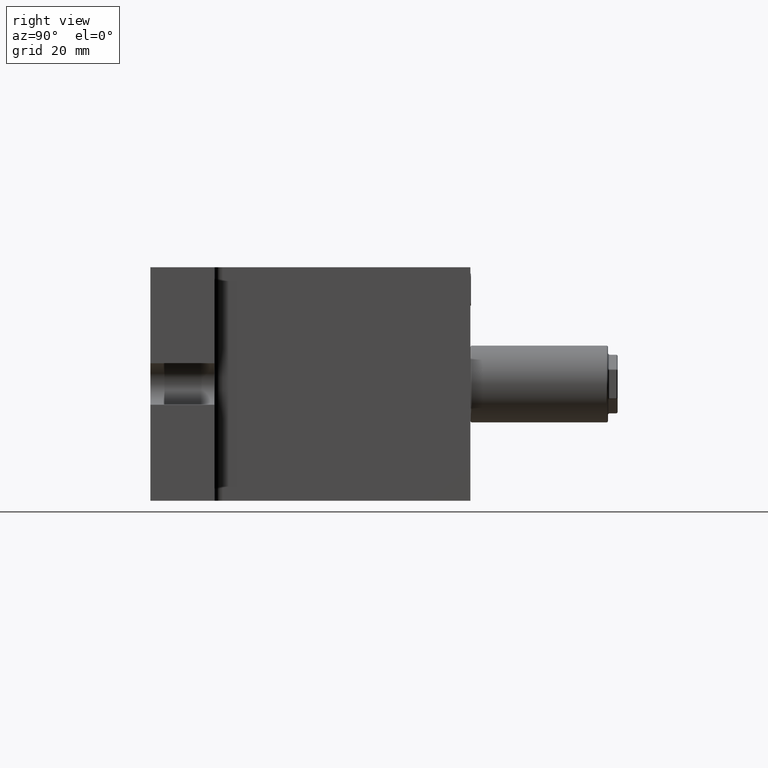
[diagram: clean part render]
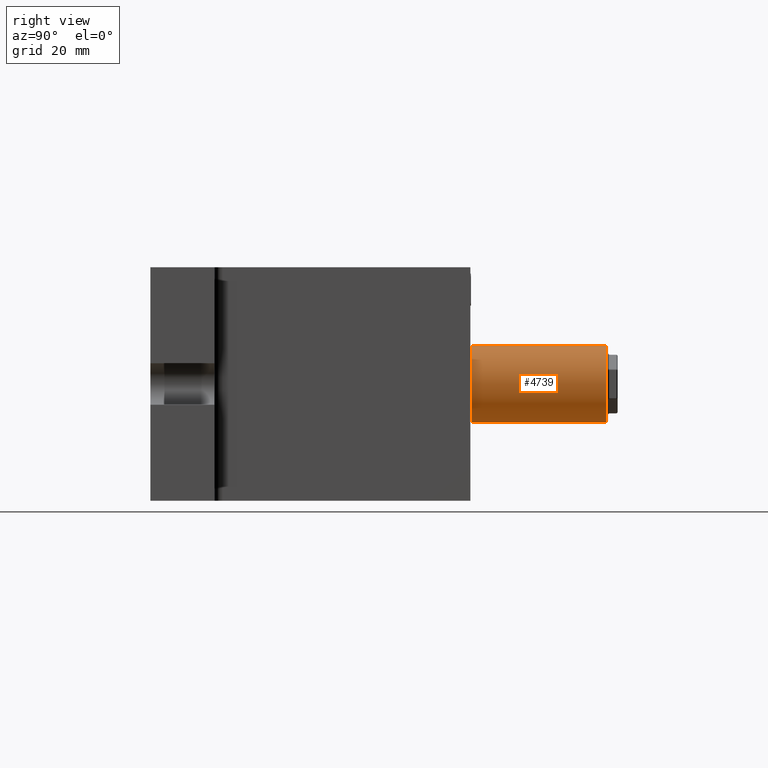
[diagram: same view with one face highlighted and labeled with its STEP entity id]
A machine part, right view. The second image highlights one B-rep face of the part: STEP entity #4739.
In plain terms, the highlighted cylindrical surface (partial cylindrical patch) has radius 12 mm, axis along (0, -1, -0).
Its self-contained STEP definition (entity closure, byte-faithful):
#79 = VECTOR ( 'NONE', #22641, 1000.000000000000000 ) ;
#368 = CARTESIAN_POINT ( 'NONE',  ( 34.00000000000000000, 93.00000000000000000, 12.00000000000000000 ) ) ;
#842 = EDGE_LOOP ( 'NONE', ( #18647, #15432, #8755, #21751, #4270, #22243, #6973, #6366, #6394, #12945, #4542, #15997, #4678, #18456, #5658, #15022, #20592, #19026, #2582, #13408 ) ) ;
#864 = DIRECTION ( 'NONE',  ( -0.0000000000000000000, 1.000000000000000000, 2.884981595602711200E-031 ) ) ;
#897 = CARTESIAN_POINT ( 'NONE',  ( 34.00000000000000000, 57.99999999999999300, 12.00000000000000000 ) ) ;
#912 = EDGE_CURVE ( 'NONE', #17815, #2125, #7672, .T. ) ;
#951 = CARTESIAN_POINT ( 'NONE',  ( 34.00000000000000700, 93.00000000000000000, -12.00000000000000000 ) ) ;
#1141 = EDGE_CURVE ( 'NONE', #7667, #10638, #6483, .T. ) ;
#1320 = VECTOR ( 'NONE', #15101, 1000.000000000000000 ) ;
#1331 = VERTEX_POINT ( 'NONE', #897 ) ;
#1772 = AXIS2_PLACEMENT_3D ( 'NONE', #7836, #7759, #5838 ) ;
#2046 = VERTEX_POINT ( 'NONE', #4234 ) ;
#2125 = VERTEX_POINT ( 'NONE', #6237 ) ;
#2294 = VECTOR ( 'NONE', #9269, 1000.000000000000000 ) ;
#2514 = CARTESIAN_POINT ( 'NONE',  ( 33.99999999999999300, 68.00000000000000000, -12.00000000000000000 ) ) ;
#2555 = CYLINDRICAL_SURFACE ( 'NONE', #13219, 12.00000000000000000 ) ;
#2582 = ORIENTED_EDGE ( 'NONE', *, *, #15588, .F. ) ;
#2590 = VECTOR ( 'NONE', #3011, 1000.000000000000000 ) ;
#3011 = DIRECTION ( 'NONE',  ( 0.0000000000000000000, -1.000000000000000000, -2.884981595602711200E-031 ) ) ;
#3042 = VECTOR ( 'NONE', #21755, 1000.000000000000000 ) ;
#3316 = CIRCLE ( 'NONE', #1772, 12.00000000000000000 ) ;
#3430 = CARTESIAN_POINT ( 'NONE',  ( 34.00000000000000000, 93.00000000000000000, -12.00000000000000000 ) ) ;
#3751 = DIRECTION ( 'NONE',  ( 0.0000000000000000000, -1.000000000000000000, -2.884981595602711200E-031 ) ) ;
#3946 = DIRECTION ( 'NONE',  ( 0.0000000000000000000, -1.000000000000000000, -2.884981595602711200E-031 ) ) ;
#4091 = VERTEX_POINT ( 'NONE', #14336 ) ;
#4234 = CARTESIAN_POINT ( 'NONE',  ( 34.00000000000000000, 81.99999999999998600, -12.00000000000000700 ) ) ;
#4270 = ORIENTED_EDGE ( 'NONE', *, *, #18241, .T. ) ;
#4325 = CIRCLE ( 'NONE', #8107, 12.00000000000000000 ) ;
#4542 = ORIENTED_EDGE ( 'NONE', *, *, #7838, .T. ) ;
#4662 = VERTEX_POINT ( 'NONE', #9156 ) ;
#4678 = ORIENTED_EDGE ( 'NONE', *, *, #912, .F. ) ;
#4739 = ADVANCED_FACE ( 'NONE', ( #7636 ), #2555, .T. ) ;
#4935 = VERTEX_POINT ( 'NONE', #13788 ) ;
#4962 = EDGE_CURVE ( 'NONE', #12510, #2046, #8842, .T. ) ;
#5040 = EDGE_CURVE ( 'NONE', #17815, #10638, #5244, .T. ) ;
#5185 = CARTESIAN_POINT ( 'NONE',  ( 34.00000000000000000, 93.00000000000000000, 12.00000000000000000 ) ) ;
#5244 = LINE ( 'NONE', #951, #14785 ) ;
#5247 = VERTEX_POINT ( 'NONE', #23892 ) ;
#5287 = CARTESIAN_POINT ( 'NONE',  ( 34.00000000000000700, 50.50000000000000000, 3.928897086549961100E-029 ) ) ;
#5398 = EDGE_CURVE ( 'NONE', #18670, #2125, #4325, .T. ) ;
#5484 = VECTOR ( 'NONE', #12954, 1000.000000000000000 ) ;
#5658 = ORIENTED_EDGE ( 'NONE', *, *, #1141, .F. ) ;
#5707 = VERTEX_POINT ( 'NONE', #2514 ) ;
#5838 = DIRECTION ( 'NONE',  ( 0.0000000000000000000, 0.0000000000000000000, -1.000000000000000000 ) ) ;
#6237 = CARTESIAN_POINT ( 'NONE',  ( 34.00000000000000000, 50.50000000000000000, -12.00000000000000000 ) ) ;
#6366 = ORIENTED_EDGE ( 'NONE', *, *, #23563, .F. ) ;
#6382 = VERTEX_POINT ( 'NONE', #18626 ) ;
#6394 = ORIENTED_EDGE ( 'NONE', *, *, #7171, .T. ) ;
#6483 = LINE ( 'NONE', #19037, #21647 ) ;
#6906 = VECTOR ( 'NONE', #6954, 1000.000000000000000 ) ;
#6954 = DIRECTION ( 'NONE',  ( 0.0000000000000000000, -1.000000000000000000, -2.884981595602711200E-031 ) ) ;
#6973 = ORIENTED_EDGE ( 'NONE', *, *, #23587, .T. ) ;
#7171 = EDGE_CURVE ( 'NONE', #21774, #7470, #19665, .T. ) ;
#7470 = VERTEX_POINT ( 'NONE', #20364 ) ;
#7636 = FACE_OUTER_BOUND ( 'NONE', #842, .T. ) ;
#7667 = VERTEX_POINT ( 'NONE', #9457 ) ;
#7672 = LINE ( 'NONE', #14432, #2590 ) ;
#7759 = DIRECTION ( 'NONE',  ( -0.0000000000000000000, -1.000000000000000000, -2.884981595602711200E-031 ) ) ;
#7836 = CARTESIAN_POINT ( 'NONE',  ( 34.00000000000000000, 92.50000000000000000, 2.542227526591151300E-029 ) ) ;
#7838 = EDGE_CURVE ( 'NONE', #1331, #18670, #8090, .T. ) ;
#8090 = LINE ( 'NONE', #5185, #6906 ) ;
#8107 = AXIS2_PLACEMENT_3D ( 'NONE', #5287, #16775, #22509 ) ;
#8755 = ORIENTED_EDGE ( 'NONE', *, *, #10257, .T. ) ;
#8842 = LINE ( 'NONE', #23066, #20419 ) ;
#8902 = DIRECTION ( 'NONE',  ( 0.0000000000000000000, 0.0000000000000000000, 1.000000000000000000 ) ) ;
#8982 = DIRECTION ( 'NONE',  ( 0.0000000000000000000, -1.000000000000000000, -2.884981595602711200E-031 ) ) ;
#9156 = CARTESIAN_POINT ( 'NONE',  ( 33.99999999999999300, 83.99999999999998600, 12.00000000000000000 ) ) ;
#9193 = CARTESIAN_POINT ( 'NONE',  ( 34.00000000000000000, 75.99999999999998600, -12.00000000000000000 ) ) ;
#9269 = DIRECTION ( 'NONE',  ( 0.0000000000000000000, -1.000000000000000000, -2.884981595602711200E-031 ) ) ;
#9457 = CARTESIAN_POINT ( 'NONE',  ( 33.99999999999999300, 66.00000000000000000, -12.00000000000000000 ) ) ;
#9476 = CARTESIAN_POINT ( 'NONE',  ( 33.99999999999999300, 83.99999999999998600, -12.00000000000000000 ) ) ;
#9871 = DIRECTION ( 'NONE',  ( 0.0000000000000000000, -1.000000000000000000, -2.884981595602711200E-031 ) ) ;
#10257 = EDGE_CURVE ( 'NONE', #23987, #4662, #15263, .T. ) ;
#10304 = LINE ( 'NONE', #14170, #17437 ) ;
#10488 = LINE ( 'NONE', #21830, #11107 ) ;
#10638 = VERTEX_POINT ( 'NONE', #12419 ) ;
#10685 = LINE ( 'NONE', #11938, #21392 ) ;
#10944 = VECTOR ( 'NONE', #16686, 1000.000000000000000 ) ;
#11107 = VECTOR ( 'NONE', #18000, 1000.000000000000000 ) ;
#11357 = VECTOR ( 'NONE', #22923, 1000.000000000000000 ) ;
#11507 = CARTESIAN_POINT ( 'NONE',  ( 34.00000000000000000, 50.50000000000000000, 12.00000000000000000 ) ) ;
#11558 = DIRECTION ( 'NONE',  ( 0.0000000000000000000, -1.000000000000000000, -2.884981595602711200E-031 ) ) ;
#11689 = EDGE_CURVE ( 'NONE', #5707, #7667, #21048, .T. ) ;
#11707 = LINE ( 'NONE', #13952, #3042 ) ;
#11938 = CARTESIAN_POINT ( 'NONE',  ( 34.00000000000000000, 93.00000000000000000, 12.00000000000000000 ) ) ;
#12118 = EDGE_CURVE ( 'NONE', #20398, #18407, #10304, .T. ) ;
#12352 = LINE ( 'NONE', #368, #24231 ) ;
#12419 = CARTESIAN_POINT ( 'NONE',  ( 34.00000000000000000, 60.00000000000000000, -12.00000000000000000 ) ) ;
#12510 = VERTEX_POINT ( 'NONE', #9476 ) ;
#12945 = ORIENTED_EDGE ( 'NONE', *, *, #18667, .T. ) ;
#12954 = DIRECTION ( 'NONE',  ( 0.0000000000000000000, -1.000000000000000000, -2.884981595602711200E-031 ) ) ;
#13219 = AXIS2_PLACEMENT_3D ( 'NONE', #16879, #8982, #8902 ) ;
#13408 = ORIENTED_EDGE ( 'NONE', *, *, #4962, .F. ) ;
#13788 = CARTESIAN_POINT ( 'NONE',  ( 34.00000000000000000, 92.50000000000000000, -12.00000000000000000 ) ) ;
#13952 = CARTESIAN_POINT ( 'NONE',  ( 34.00000000000000000, 93.00000000000000000, 12.00000000000000000 ) ) ;
#14170 = CARTESIAN_POINT ( 'NONE',  ( 34.00000000000000700, 93.00000000000000000, -12.00000000000000000 ) ) ;
#14336 = CARTESIAN_POINT ( 'NONE',  ( 33.99999999999999300, 68.00000000000000000, 12.00000000000000000 ) ) ;
#14432 = CARTESIAN_POINT ( 'NONE',  ( 34.00000000000000000, 93.00000000000000000, -12.00000000000000000 ) ) ;
#14454 = VECTOR ( 'NONE', #11558, 1000.000000000000000 ) ;
#14559 = CARTESIAN_POINT ( 'NONE',  ( 34.00000000000000000, 93.00000000000000000, 12.00000000000000000 ) ) ;
#14608 = EDGE_CURVE ( 'NONE', #4935, #12510, #15415, .T. ) ;
#14785 = VECTOR ( 'NONE', #864, 1000.000000000000000 ) ;
#15022 = ORIENTED_EDGE ( 'NONE', *, *, #11689, .F. ) ;
#15101 = DIRECTION ( 'NONE',  ( 0.0000000000000000000, -1.000000000000000000, -2.884981595602711200E-031 ) ) ;
#15108 = CARTESIAN_POINT ( 'NONE',  ( 34.00000000000000700, 93.00000000000000000, -12.00000000000000000 ) ) ;
#15109 = CARTESIAN_POINT ( 'NONE',  ( 34.00000000000000000, 92.50000000000000000, 12.00000000000000000 ) ) ;
#15263 = LINE ( 'NONE', #14559, #21182 ) ;
#15415 = LINE ( 'NONE', #3430, #2294 ) ;
#15429 = CARTESIAN_POINT ( 'NONE',  ( 34.00000000000000000, 93.00000000000000000, 12.00000000000000000 ) ) ;
#15432 = ORIENTED_EDGE ( 'NONE', *, *, #19609, .T. ) ;
#15588 = EDGE_CURVE ( 'NONE', #2046, #20398, #17978, .T. ) ;
#15625 = CARTESIAN_POINT ( 'NONE',  ( 34.00000000000000000, 93.00000000000000000, -12.00000000000000000 ) ) ;
#15756 = DIRECTION ( 'NONE',  ( -0.0000000000000000000, 1.000000000000000000, 2.884981595602711200E-031 ) ) ;
#15909 = LINE ( 'NONE', #15429, #1320 ) ;
#15997 = ORIENTED_EDGE ( 'NONE', *, *, #5398, .T. ) ;
#16686 = DIRECTION ( 'NONE',  ( 0.0000000000000000000, -1.000000000000000000, -2.884981595602711200E-031 ) ) ;
#16775 = DIRECTION ( 'NONE',  ( 0.0000000000000000000, 1.000000000000000000, 2.884981595602711200E-031 ) ) ;
#16879 = CARTESIAN_POINT ( 'NONE',  ( 34.00000000000000000, 93.00000000000000000, 4.082971482100940000E-029 ) ) ;
#17437 = VECTOR ( 'NONE', #23767, 1000.000000000000000 ) ;
#17815 = VERTEX_POINT ( 'NONE', #19433 ) ;
#17978 = LINE ( 'NONE', #15625, #14454 ) ;
#18000 = DIRECTION ( 'NONE',  ( -0.0000000000000000000, 1.000000000000000000, 2.884981595602711200E-031 ) ) ;
#18187 = DIRECTION ( 'NONE',  ( 0.0000000000000000000, -1.000000000000000000, -2.884981595602711200E-031 ) ) ;
#18241 = EDGE_CURVE ( 'NONE', #6382, #5247, #12352, .T. ) ;
#18407 = VERTEX_POINT ( 'NONE', #21817 ) ;
#18456 = ORIENTED_EDGE ( 'NONE', *, *, #5040, .T. ) ;
#18584 = CARTESIAN_POINT ( 'NONE',  ( 34.00000000000000000, 74.00000000000000000, 12.00000000000000000 ) ) ;
#18626 = CARTESIAN_POINT ( 'NONE',  ( 34.00000000000000000, 81.99999999999998600, 11.99999999999999300 ) ) ;
#18647 = ORIENTED_EDGE ( 'NONE', *, *, #14608, .F. ) ;
#18667 = EDGE_CURVE ( 'NONE', #7470, #1331, #15909, .T. ) ;
#18670 = VERTEX_POINT ( 'NONE', #11507 ) ;
#19026 = ORIENTED_EDGE ( 'NONE', *, *, #12118, .F. ) ;
#19037 = CARTESIAN_POINT ( 'NONE',  ( 34.00000000000000000, 93.00000000000000000, -12.00000000000000000 ) ) ;
#19433 = CARTESIAN_POINT ( 'NONE',  ( 34.00000000000000000, 57.99999999999999300, -12.00000000000000000 ) ) ;
#19609 = EDGE_CURVE ( 'NONE', #4935, #23987, #3316, .T. ) ;
#19665 = LINE ( 'NONE', #21043, #11357 ) ;
#20260 = EDGE_CURVE ( 'NONE', #6382, #4662, #10685, .T. ) ;
#20340 = LINE ( 'NONE', #22487, #79 ) ;
#20364 = CARTESIAN_POINT ( 'NONE',  ( 34.00000000000000000, 60.00000000000000000, 12.00000000000000000 ) ) ;
#20398 = VERTEX_POINT ( 'NONE', #9193 ) ;
#20419 = VECTOR ( 'NONE', #9871, 1000.000000000000000 ) ;
#20443 = EDGE_CURVE ( 'NONE', #23855, #5247, #20340, .T. ) ;
#20592 = ORIENTED_EDGE ( 'NONE', *, *, #22458, .F. ) ;
#20689 = LINE ( 'NONE', #22497, #5484 ) ;
#21043 = CARTESIAN_POINT ( 'NONE',  ( 34.00000000000000000, 93.00000000000000000, 12.00000000000000000 ) ) ;
#21048 = LINE ( 'NONE', #15108, #10944 ) ;
#21182 = VECTOR ( 'NONE', #18187, 1000.000000000000000 ) ;
#21392 = VECTOR ( 'NONE', #15756, 1000.000000000000000 ) ;
#21647 = VECTOR ( 'NONE', #3751, 1000.000000000000000 ) ;
#21751 = ORIENTED_EDGE ( 'NONE', *, *, #20260, .F. ) ;
#21755 = DIRECTION ( 'NONE',  ( 0.0000000000000000000, -1.000000000000000000, -2.884981595602711200E-031 ) ) ;
#21774 = VERTEX_POINT ( 'NONE', #23286 ) ;
#21817 = CARTESIAN_POINT ( 'NONE',  ( 34.00000000000000700, 74.00000000000000000, -12.00000000000000000 ) ) ;
#21830 = CARTESIAN_POINT ( 'NONE',  ( 34.00000000000000000, 93.00000000000000000, 12.00000000000000000 ) ) ;
#22243 = ORIENTED_EDGE ( 'NONE', *, *, #20443, .F. ) ;
#22458 = EDGE_CURVE ( 'NONE', #18407, #5707, #20689, .T. ) ;
#22487 = CARTESIAN_POINT ( 'NONE',  ( 34.00000000000000000, 93.00000000000000000, 12.00000000000000000 ) ) ;
#22497 = CARTESIAN_POINT ( 'NONE',  ( 34.00000000000000000, 93.00000000000000000, -12.00000000000000000 ) ) ;
#22509 = DIRECTION ( 'NONE',  ( 0.0000000000000000000, 0.0000000000000000000, -1.000000000000000000 ) ) ;
#22641 = DIRECTION ( 'NONE',  ( -0.0000000000000000000, 1.000000000000000000, 2.884981595602711200E-031 ) ) ;
#22923 = DIRECTION ( 'NONE',  ( 0.0000000000000000000, -1.000000000000000000, -2.884981595602711200E-031 ) ) ;
#23066 = CARTESIAN_POINT ( 'NONE',  ( 34.00000000000000700, 93.00000000000000000, -12.00000000000000000 ) ) ;
#23286 = CARTESIAN_POINT ( 'NONE',  ( 33.99999999999999300, 66.00000000000000000, 12.00000000000000000 ) ) ;
#23563 = EDGE_CURVE ( 'NONE', #21774, #4091, #10488, .T. ) ;
#23587 = EDGE_CURVE ( 'NONE', #23855, #4091, #11707, .T. ) ;
#23767 = DIRECTION ( 'NONE',  ( 0.0000000000000000000, -1.000000000000000000, -2.884981595602711200E-031 ) ) ;
#23855 = VERTEX_POINT ( 'NONE', #18584 ) ;
#23892 = CARTESIAN_POINT ( 'NONE',  ( 34.00000000000000000, 75.99999999999998600, 12.00000000000000000 ) ) ;
#23987 = VERTEX_POINT ( 'NONE', #15109 ) ;
#24231 = VECTOR ( 'NONE', #3946, 1000.000000000000000 ) ;